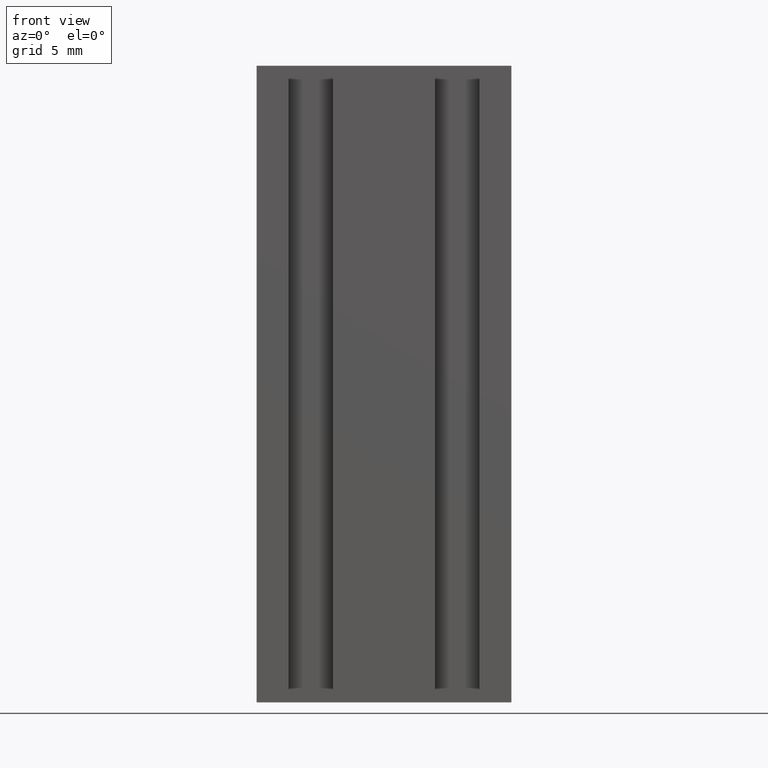
[diagram: clean part render]
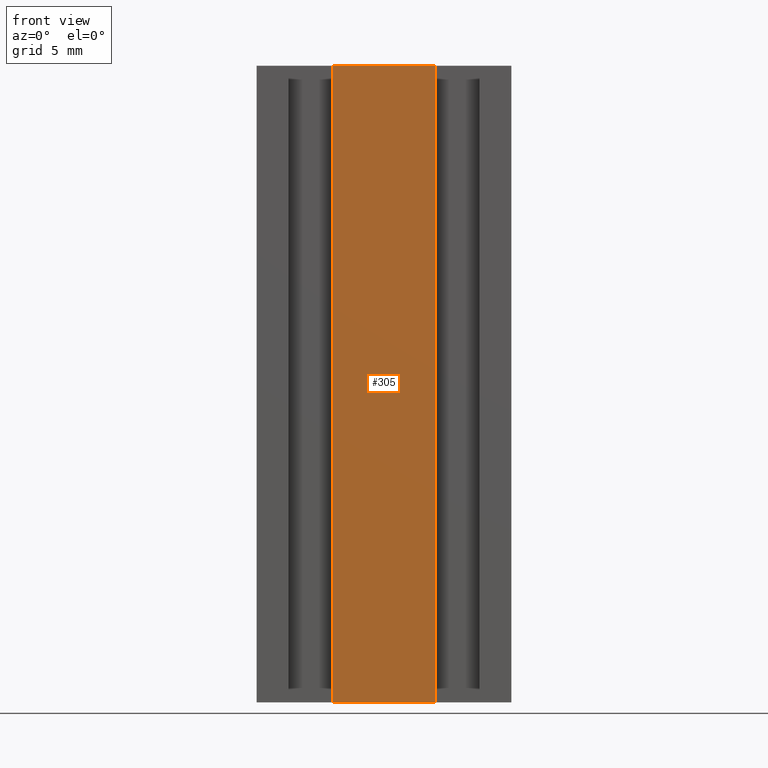
[diagram: same view with one face highlighted and labeled with its STEP entity id]
A machine part, front view. The second image highlights one B-rep face of the part: STEP entity #305.
In plain terms, the highlighted planar face has unit normal (0, -1, 0).
Its self-contained STEP definition (entity closure, byte-faithful):
#19=FACE_OUTER_BOUND('',#35,.T.);
#35=EDGE_LOOP('',(#217,#218,#219,#220));
#59=LINE('',#456,#101);
#60=LINE('',#459,#102);
#61=LINE('',#461,#103);
#62=LINE('',#462,#104);
#101=VECTOR('',#375,10.);
#102=VECTOR('',#378,10.);
#103=VECTOR('',#379,10.);
#104=VECTOR('',#380,10.);
#139=VERTEX_POINT('',#452);
#140=VERTEX_POINT('',#454);
#141=VERTEX_POINT('',#458);
#142=VERTEX_POINT('',#460);
#171=EDGE_CURVE('',#139,#140,#59,.T.);
#172=EDGE_CURVE('',#139,#141,#60,.T.);
#173=EDGE_CURVE('',#142,#140,#61,.T.);
#174=EDGE_CURVE('',#141,#142,#62,.T.);
#217=ORIENTED_EDGE('',*,*,#172,.F.);
#218=ORIENTED_EDGE('',*,*,#171,.T.);
#219=ORIENTED_EDGE('',*,*,#173,.F.);
#220=ORIENTED_EDGE('',*,*,#174,.F.);
#289=PLANE('',#341);
#305=ADVANCED_FACE('',(#19),#289,.T.);
#341=AXIS2_PLACEMENT_3D('',#457,#376,#377);
#375=DIRECTION('',(0.,0.,-1.));
#376=DIRECTION('center_axis',(1.38777878078145E-16,-1.,0.));
#377=DIRECTION('ref_axis',(-1.,-1.38777878078145E-16,0.));
#378=DIRECTION('',(1.,1.38777878078145E-16,0.));
#379=DIRECTION('',(-1.,-1.38777878078145E-16,0.));
#380=DIRECTION('',(0.,0.,-1.));
#452=CARTESIAN_POINT('',(-4.,0.,0.));
#454=CARTESIAN_POINT('',(-4.,0.,-50.));
#456=CARTESIAN_POINT('',(-4.,0.,0.));
#457=CARTESIAN_POINT('Origin',(4.,1.11022302462516E-15,0.));
#458=CARTESIAN_POINT('',(4.,1.11022302462516E-15,0.));
#459=CARTESIAN_POINT('',(-4.,0.,0.));
#460=CARTESIAN_POINT('',(4.,1.11022302462516E-15,-50.));
#461=CARTESIAN_POINT('',(-4.,0.,-50.));
#462=CARTESIAN_POINT('',(4.,1.11022302462516E-15,0.));